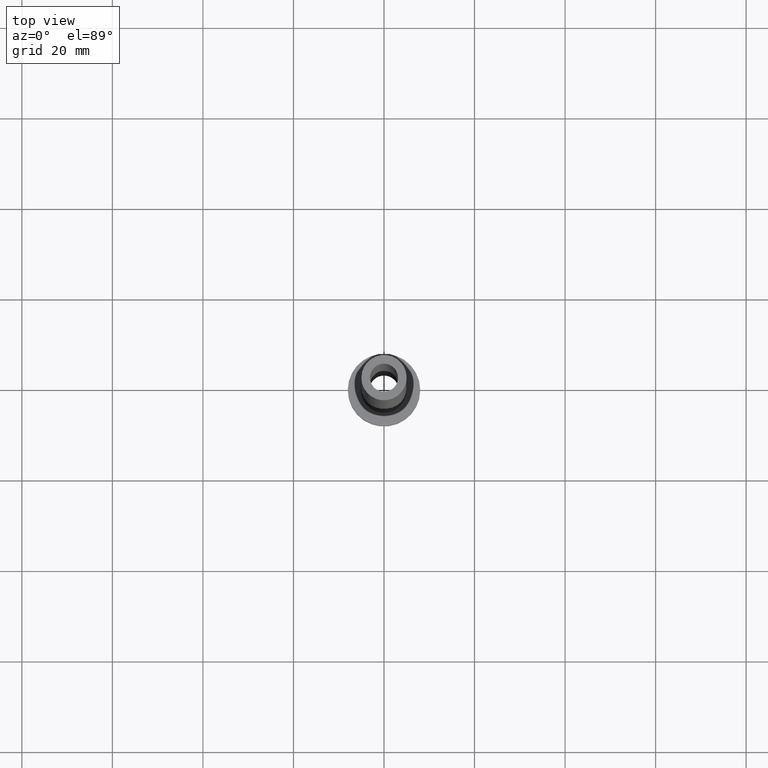
[diagram: clean part render]
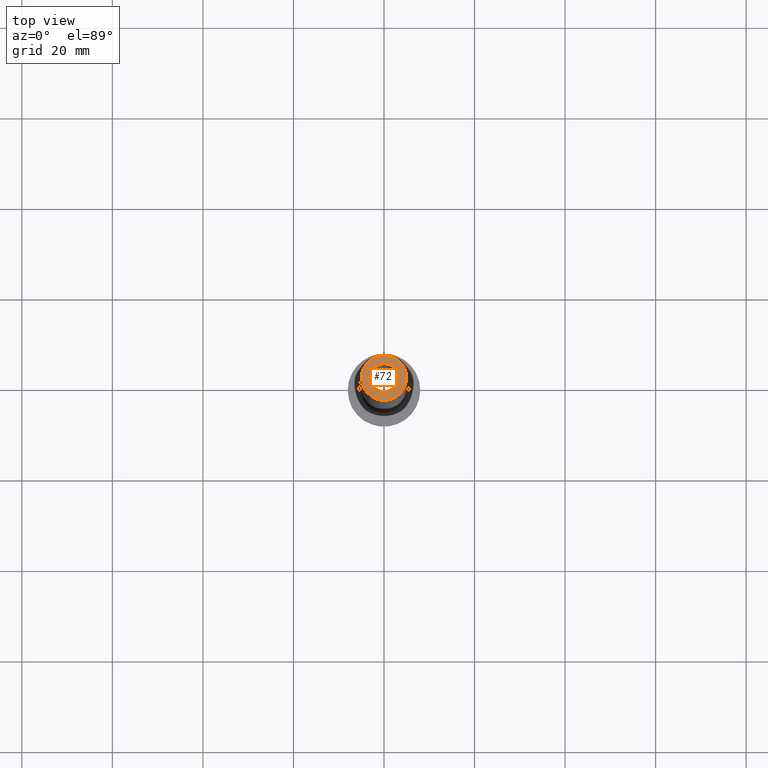
[diagram: same view with one face highlighted and labeled with its STEP entity id]
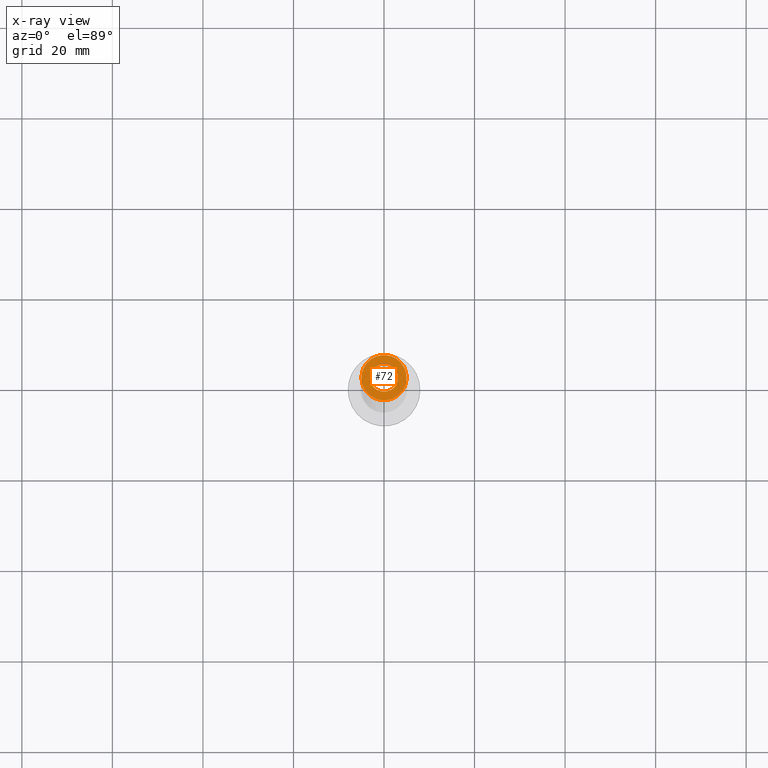
[diagram: x-ray of the same camera — body ghosted, the highlighted face saturated]
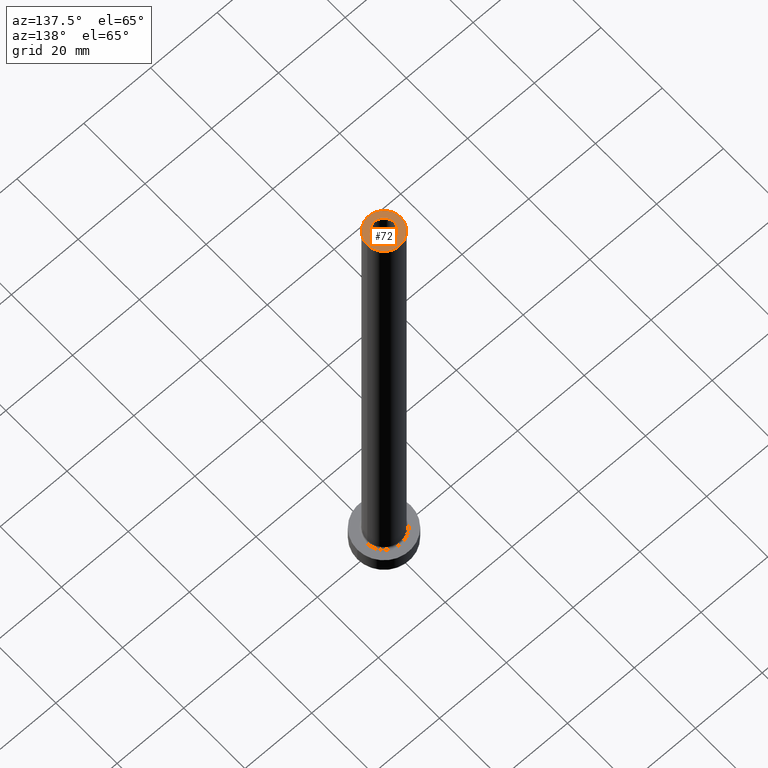
[diagram: same view with one face highlighted and labeled with its STEP entity id]
A machine part, top view. The second image highlights one B-rep face of the part: STEP entity #72.
The next image is the same camera in x-ray: the body ghosted, the highlighted face saturated — about 0% of this face is hidden behind the body in this view.
A second angle (auxiliary view) of the same face is appended — the face is thin or edge-on in the first view.
In plain terms, the highlighted planar face has unit normal (0, 0, 1).
Its self-contained STEP definition (entity closure, byte-faithful):
#35 = DIRECTION ( 'NONE',  ( 0.000000000000000000, 0.000000000000000000, 1.000000000000000000 ) ) ;
#42 = CARTESIAN_POINT ( 'NONE',  ( -5.000000000000000000, 0.000000000000000000, 160.0000000000000000 ) ) ;
#43 = DIRECTION ( 'NONE',  ( 1.000000000000000000, 0.000000000000000000, -0.000000000000000000 ) ) ;
#46 = EDGE_CURVE ( 'NONE', #317, #283, #452, .T. ) ;
#65 = CARTESIAN_POINT ( 'NONE',  ( 0.000000000000000000, 0.000000000000000000, 160.0000000000000000 ) ) ;
#71 = EDGE_CURVE ( 'NONE', #283, #317, #301, .T. ) ;
#72 = ADVANCED_FACE ( 'NONE', ( #389, #253 ), #147, .T. ) ;
#73 = CARTESIAN_POINT ( 'NONE',  ( 0.000000000000000000, 0.000000000000000000, 160.0000000000000000 ) ) ;
#79 = CARTESIAN_POINT ( 'NONE',  ( 0.000000000000000000, 0.000000000000000000, 160.0000000000000000 ) ) ;
#93 = CARTESIAN_POINT ( 'NONE',  ( 0.000000000000000000, 0.000000000000000000, 160.0000000000000000 ) ) ;
#97 = CARTESIAN_POINT ( 'NONE',  ( -3.100000000000000089, 0.000000000000000000, 160.0000000000000000 ) ) ;
#129 = CARTESIAN_POINT ( 'NONE',  ( 5.000000000000000000, 6.123233995736766282E-16, 160.0000000000000000 ) ) ;
#132 = AXIS2_PLACEMENT_3D ( 'NONE', #93, #260, #339 ) ;
#138 = DIRECTION ( 'NONE',  ( 1.000000000000000000, 0.000000000000000000, 0.000000000000000000 ) ) ;
#147 = PLANE ( 'NONE',  #415 ) ;
#183 = DIRECTION ( 'NONE',  ( 0.000000000000000000, 0.000000000000000000, 1.000000000000000000 ) ) ;
#194 = EDGE_CURVE ( 'NONE', #422, #251, #388, .T. ) ;
#199 = AXIS2_PLACEMENT_3D ( 'NONE', #73, #183, #219 ) ;
#206 = DIRECTION ( 'NONE',  ( 1.000000000000000000, 0.000000000000000000, 0.000000000000000000 ) ) ;
#219 = DIRECTION ( 'NONE',  ( 1.000000000000000000, 0.000000000000000000, 0.000000000000000000 ) ) ;
#222 = ORIENTED_EDGE ( 'NONE', *, *, #332, .T. ) ;
#251 = VERTEX_POINT ( 'NONE', #129 ) ;
#253 = FACE_OUTER_BOUND ( 'NONE', #442, .T. ) ;
#260 = DIRECTION ( 'NONE',  ( 0.000000000000000000, 0.000000000000000000, 1.000000000000000000 ) ) ;
#283 = VERTEX_POINT ( 'NONE', #459 ) ;
#301 = CIRCLE ( 'NONE', #199, 3.100000000000000089 ) ;
#305 = AXIS2_PLACEMENT_3D ( 'NONE', #306, #377, #206 ) ;
#306 = CARTESIAN_POINT ( 'NONE',  ( 0.000000000000000000, 0.000000000000000000, 160.0000000000000000 ) ) ;
#317 = VERTEX_POINT ( 'NONE', #97 ) ;
#323 = ORIENTED_EDGE ( 'NONE', *, *, #194, .T. ) ;
#325 = ORIENTED_EDGE ( 'NONE', *, *, #46, .F. ) ;
#326 = CIRCLE ( 'NONE', #305, 5.000000000000000000 ) ;
#332 = EDGE_CURVE ( 'NONE', #251, #422, #326, .T. ) ;
#339 = DIRECTION ( 'NONE',  ( 1.000000000000000000, 0.000000000000000000, 0.000000000000000000 ) ) ;
#358 = DIRECTION ( 'NONE',  ( 0.000000000000000000, 0.000000000000000000, 1.000000000000000000 ) ) ;
#362 = ORIENTED_EDGE ( 'NONE', *, *, #71, .F. ) ;
#377 = DIRECTION ( 'NONE',  ( 0.000000000000000000, 0.000000000000000000, 1.000000000000000000 ) ) ;
#378 = EDGE_LOOP ( 'NONE', ( #325, #362 ) ) ;
#388 = CIRCLE ( 'NONE', #132, 5.000000000000000000 ) ;
#389 = FACE_BOUND ( 'NONE', #378, .T. ) ;
#394 = AXIS2_PLACEMENT_3D ( 'NONE', #65, #35, #138 ) ;
#415 = AXIS2_PLACEMENT_3D ( 'NONE', #79, #358, #43 ) ;
#422 = VERTEX_POINT ( 'NONE', #42 ) ;
#442 = EDGE_LOOP ( 'NONE', ( #323, #222 ) ) ;
#452 = CIRCLE ( 'NONE', #394, 3.100000000000000089 ) ;
#459 = CARTESIAN_POINT ( 'NONE',  ( 3.100000000000000089, 3.796405077356793932E-16, 160.0000000000000000 ) ) ;